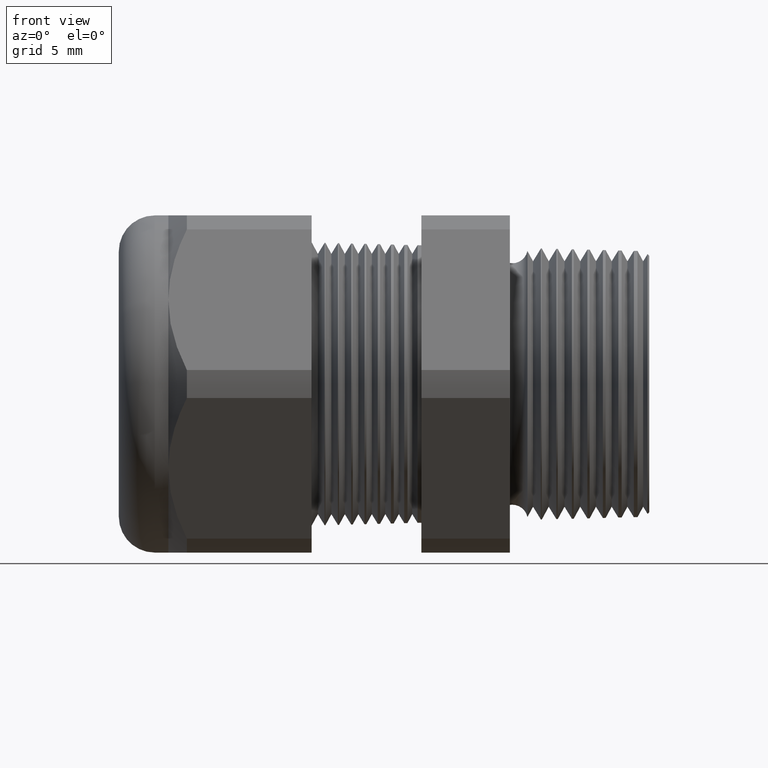
[diagram: clean part render]
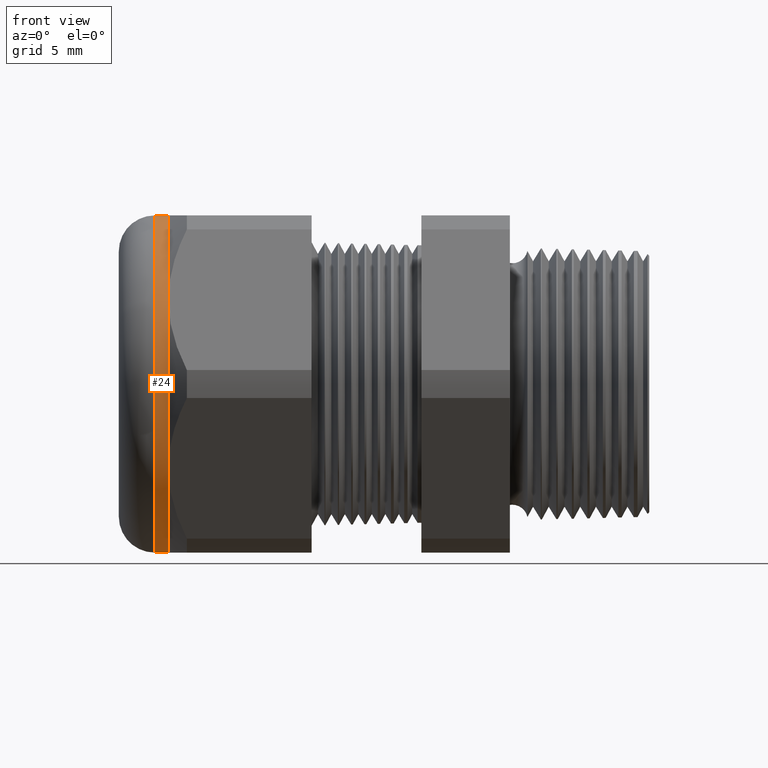
[diagram: same view with one face highlighted and labeled with its STEP entity id]
A machine part, front view. The second image highlights one B-rep face of the part: STEP entity #24.
In plain terms, the highlighted cylindrical surface (partial cylindrical patch) has radius 9.525 mm, axis along (1, 0, 0).
Its self-contained STEP definition (entity closure, byte-faithful):
#18 = ORIENTED_EDGE ( 'NONE', *, *, #26, .F. ) ;
#19 = ORIENTED_EDGE ( 'NONE', *, *, #406, .F. ) ;
#20 = ORIENTED_EDGE ( 'NONE', *, *, #25, .T. ) ;
#21 = EDGE_CURVE ( 'NONE', #3896, #466, #1094, .T. ) ;
#22 = ORIENTED_EDGE ( 'NONE', *, *, #21, .F. ) ;
#23 = ORIENTED_EDGE ( 'NONE', *, *, #468, .T. ) ;
#24 = ADVANCED_FACE ( 'NONE', ( #1085 ), #1084, .T. ) ;
#25 = EDGE_CURVE ( 'NONE', #1074, #1063, #1083, .T. ) ;
#26 = EDGE_CURVE ( 'NONE', #72, #3896, #1138, .T. ) ;
#27 = EDGE_LOOP ( 'NONE', ( #19, #20, #23, #22, #18, #3790 ) ) ;
#72 = VERTEX_POINT ( 'NONE', #1219 ) ;
#405 = VERTEX_POINT ( 'NONE', #1729 ) ;
#406 = EDGE_CURVE ( 'NONE', #1074, #405, #1723, .T. ) ;
#466 = VERTEX_POINT ( 'NONE', #1819 ) ;
#468 = EDGE_CURVE ( 'NONE', #1063, #466, #1818, .T. ) ;
#1063 = VERTEX_POINT ( 'NONE', #2908 ) ;
#1074 = VERTEX_POINT ( 'NONE', #2957 ) ;
#1079 = DIRECTION ( 'NONE',  ( 0.0000000000000000000, 0.0000000000000000000, -1.000000000000000000 ) ) ;
#1080 = DIRECTION ( 'NONE',  ( 1.000000000000000000, 0.0000000000000000000, 0.0000000000000000000 ) ) ;
#1081 = CARTESIAN_POINT ( 'NONE',  ( 0.0000000000000000000, 0.0000000000000000000, 0.0000000000000000000 ) ) ;
#1082 = AXIS2_PLACEMENT_3D ( 'NONE', #1081, #1080, #1079 ) ;
#1083 = CIRCLE ( 'NONE', #1142, 0.3750000000000001100 ) ;
#1084 = CYLINDRICAL_SURFACE ( 'NONE', #1082, 0.3750000000000001100 ) ;
#1085 = FACE_OUTER_BOUND ( 'NONE', #27, .T. ) ;
#1086 = DIRECTION ( 'NONE',  ( 0.0000000000000000000, 0.0000000000000000000, -1.000000000000000000 ) ) ;
#1087 = DIRECTION ( 'NONE',  ( 1.000000000000000000, 0.0000000000000000000, 0.0000000000000000000 ) ) ;
#1088 = CARTESIAN_POINT ( 'NONE',  ( -1.069763779527559000, 0.0000000000000000000, 0.0000000000000000000 ) ) ;
#1089 = AXIS2_PLACEMENT_3D ( 'NONE', #1088, #1087, #1086 ) ;
#1094 = CIRCLE ( 'NONE', #1089, 0.3750000000000001100 ) ;
#1134 = DIRECTION ( 'NONE',  ( 0.0000000000000000000, 0.0000000000000000000, -1.000000000000000000 ) ) ;
#1135 = DIRECTION ( 'NONE',  ( 1.000000000000000000, 0.0000000000000000000, 0.0000000000000000000 ) ) ;
#1136 = CARTESIAN_POINT ( 'NONE',  ( -1.069763779527559000, 0.0000000000000000000, 0.0000000000000000000 ) ) ;
#1137 = AXIS2_PLACEMENT_3D ( 'NONE', #1136, #1135, #1134 ) ;
#1138 = CIRCLE ( 'NONE', #1137, 0.3750000000000001100 ) ;
#1139 = DIRECTION ( 'NONE',  ( 0.0000000000000000000, 0.0000000000000000000, 1.000000000000000000 ) ) ;
#1140 = DIRECTION ( 'NONE',  ( 1.000000000000000000, 0.0000000000000000000, 0.0000000000000000000 ) ) ;
#1141 = CARTESIAN_POINT ( 'NONE',  ( -1.100000000000000100, 0.0000000000000000000, 0.0000000000000000000 ) ) ;
#1142 = AXIS2_PLACEMENT_3D ( 'NONE', #1141, #1140, #1139 ) ;
#1219 = CARTESIAN_POINT ( 'NONE',  ( -1.069763779527559200, -0.3247595264191646700, 0.1875000000000000600 ) ) ;
#1720 = DIRECTION ( 'NONE',  ( 1.000000000000000000, 0.0000000000000000000, 0.0000000000000000000 ) ) ;
#1721 = VECTOR ( 'NONE', #1720, 39.37007874015748100 ) ;
#1722 = CARTESIAN_POINT ( 'NONE',  ( 0.0000000000000000000, 4.592425496802576100E-017, 0.3750000000000001100 ) ) ;
#1723 = LINE ( 'NONE', #1722, #1721 ) ;
#1729 = CARTESIAN_POINT ( 'NONE',  ( -1.069763779527559200, 0.0000000000000000000, 0.3749999999999999400 ) ) ;
#1815 = DIRECTION ( 'NONE',  ( 1.000000000000000000, 0.0000000000000000000, 0.0000000000000000000 ) ) ;
#1816 = VECTOR ( 'NONE', #1815, 39.37007874015748100 ) ;
#1817 = CARTESIAN_POINT ( 'NONE',  ( 0.0000000000000000000, 0.0000000000000000000, -0.3750000000000001100 ) ) ;
#1818 = LINE ( 'NONE', #1817, #1816 ) ;
#1819 = CARTESIAN_POINT ( 'NONE',  ( -1.069763779527559200, 0.0000000000000000000, -0.3750000000000001100 ) ) ;
#2908 = CARTESIAN_POINT ( 'NONE',  ( -1.100000000000000100, 0.0000000000000000000, -0.3750000000000001100 ) ) ;
#2957 = CARTESIAN_POINT ( 'NONE',  ( -1.100000000000000100, 4.592425496802576100E-017, 0.3750000000000001100 ) ) ;
#3005 = CIRCLE ( 'NONE', #3067, 0.3750000000000001100 ) ;
#3064 = DIRECTION ( 'NONE',  ( 0.0000000000000000000, 0.0000000000000000000, -1.000000000000000000 ) ) ;
#3065 = DIRECTION ( 'NONE',  ( 1.000000000000000000, 0.0000000000000000000, 0.0000000000000000000 ) ) ;
#3066 = CARTESIAN_POINT ( 'NONE',  ( -1.069763779527559000, 0.0000000000000000000, 0.0000000000000000000 ) ) ;
#3067 = AXIS2_PLACEMENT_3D ( 'NONE', #3066, #3065, #3064 ) ;
#3256 = CARTESIAN_POINT ( 'NONE',  ( -1.069763779527559200, -0.3247595264191645600, -0.1875000000000001900 ) ) ;
#3790 = ORIENTED_EDGE ( 'NONE', *, *, #3793, .F. ) ;
#3793 = EDGE_CURVE ( 'NONE', #405, #72, #3005, .T. ) ;
#3896 = VERTEX_POINT ( 'NONE', #3256 ) ;